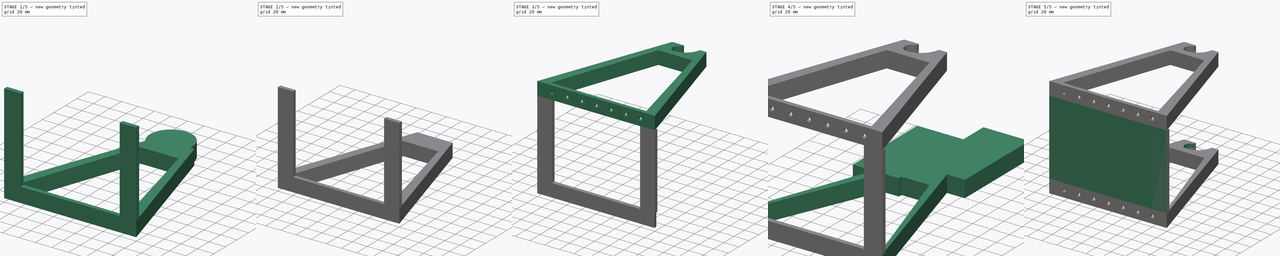
[diagram: build sequence overview — one tinted view per stage of 5, left to right]
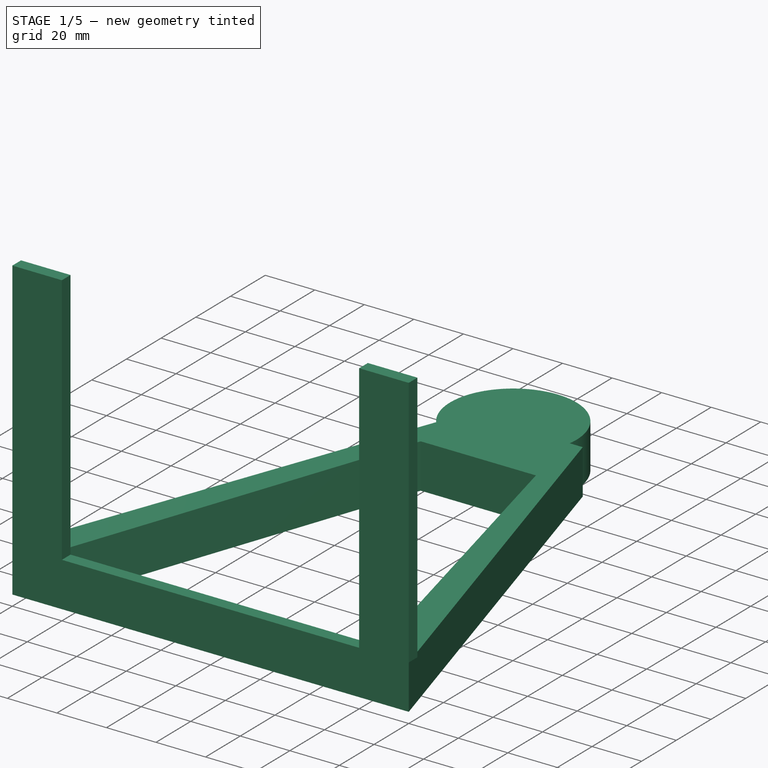
[diagram: stage 1 of 5 — iso view after this stage's code; geometry added in this stage tinted green]
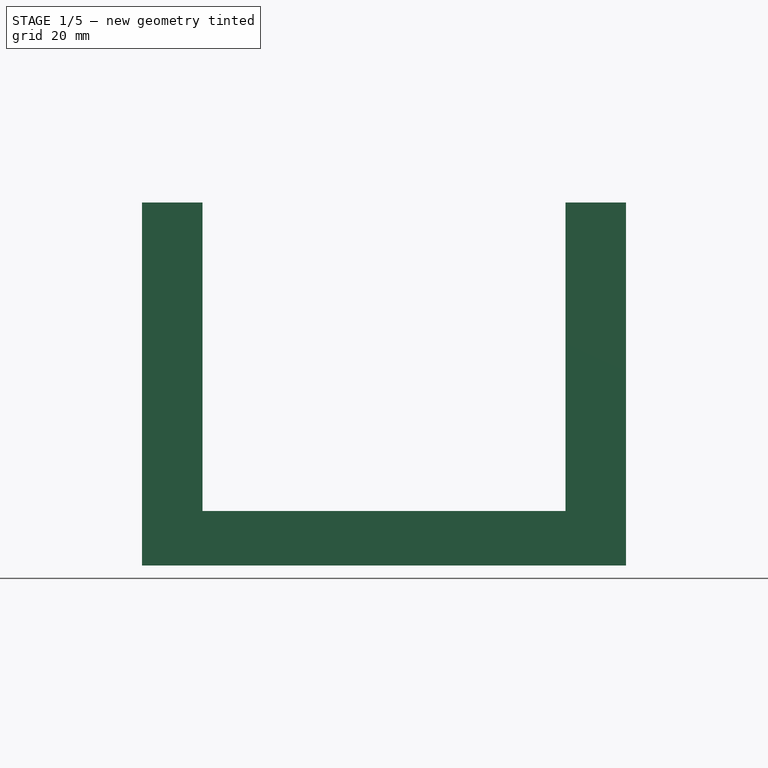
[diagram: stage 1 of 5 — front view after this stage's code; geometry added in this stage tinted green]
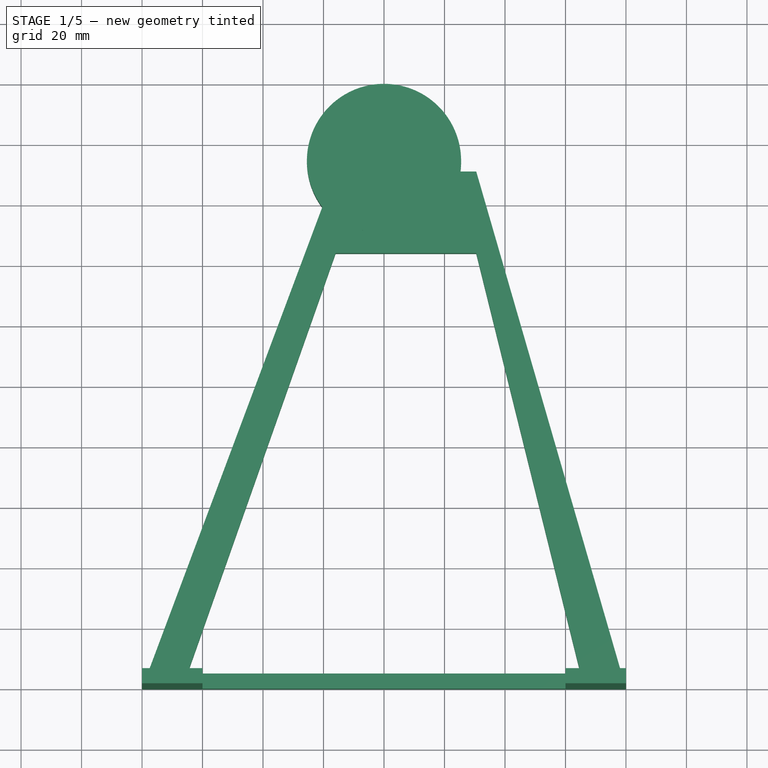
[diagram: stage 1 of 5 — top view after this stage's code; geometry added in this stage tinted green]
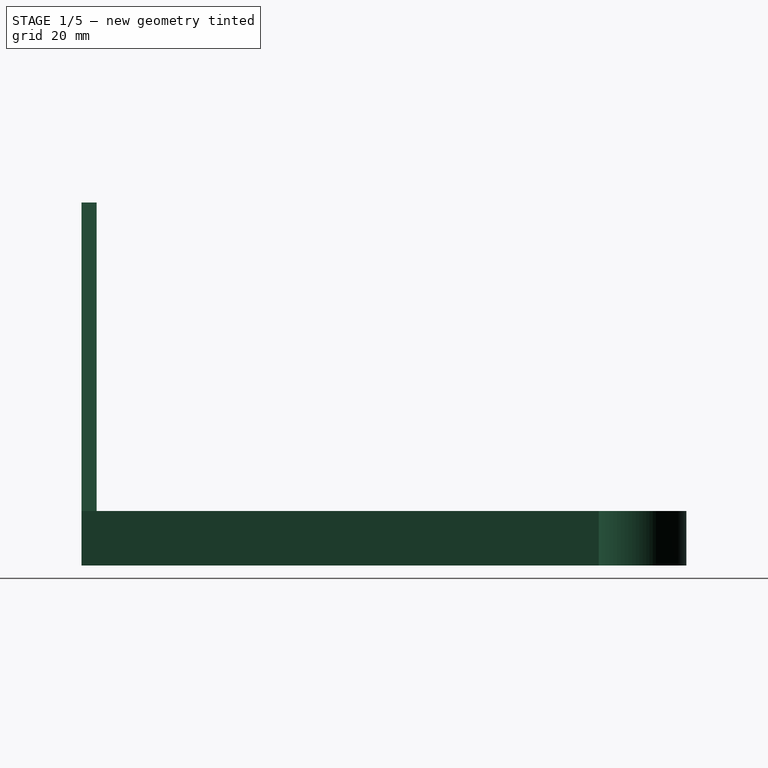
[diagram: stage 1 of 5 — right view after this stage's code; geometry added in this stage tinted green]
FCSTD DOCUMENT  (FreeCAD 1.0R1.0rc2)
Label: SimpleStand
License: All rights reserved
LicenseURL: http://en.wikipedia.org/wiki/All_rights_reserved
objects: Part::Cylinder×20, Part::Cut×20, Part::Box×15, Part::MultiFuse×12, Sketcher::SketchObject×6, PartDesign::Pad×6, PartDesign::Body×6, Part::MultiCommon×4, Part::FeaturePython×2, Spreadsheet::Sheet×1
note: 107 computed .brp shape members not serialized (recipe doc carries the construction recipe); baked Part::Feature solids carry a one-line shape summary decoded from their .brp

FEATURE [Part::Box] Box011  label="Cube011"
  AttacherType = Attacher::AttachEngine3D
  Height = 18
  Length = 46.5
  Placement = pos=(-16,-16,-5) rot=(0,0,1;0rad)
  Width = 27
FEATURE [Part::Box] Box012  label="Cube012"
  AttacherType = Attacher::AttachEngine3D
  Height = 18
  Length = 160
  Placement = pos=(-80,-160,-5) rot=(0,0,1;0rad)
  Width = 5
  expr: .Placement.Base.x = -<<Spreadsheet>>.stand_spread / 2
  expr: .Placement.Base.y = -<<Spreadsheet>>.stand_height
  expr: Length = <<Spreadsheet>>.stand_spread
FEATURE [Part::Cylinder] Cylinder016
  Angle = 360
  AttacherType = Attacher::AttachEngine3D
  FirstAngle = 0
  Height = 18
  Placement = pos=(0,0,-5) rot=(0,0,1;0rad)
  Radius = 11
  SecondAngle = 0
FEATURE [Part::Cylinder] Cylinder017
  Angle = 360
  AttacherType = Attacher::AttachEngine3D
  FirstAngle = 0
  Height = 18
  Placement = pos=(0,14.5,-5) rot=(0,0,1;0rad)
  Radius = 25.5
  SecondAngle = 0
FEATURE [Part::Cylinder] Cylinder018
  Angle = 360
  AttacherType = Attacher::AttachEngine3D
  FirstAngle = 0
  Height = 5
  Radius = 2.25
  SecondAngle = 0
FEATURE [Part::Cylinder] Cylinder019
  Angle = 360
  AttacherType = Attacher::AttachEngine3D
  FirstAngle = 0
  Height = 2
  Placement = pos=(0,0,3) rot=(0,0,1;0rad)
  Radius = 3.5
  SecondAngle = 0
FEATURE [Part::MultiFuse] Fusion009
  Placement = pos=(0,-160,3.75) rot=(1,0,0;-1.5708rad)
  Shapes = -> [Cylinder018,Cylinder019]
  expr: .Placement.Base.y = -<<Spreadsheet>>.stand_height
FEATURE [Sketcher::SketchObject] Sketch003
  ArcFitTolerance = 1e-06
  AttachmentSupport = -> [XY_Plane003]
  FullyConstrained = true
  MakeInternals = false
  MapMode = 5
  expr: Constraints[11] = <<Spreadsheet>>.stand_spread / 2
  expr: Constraints[7] = <<Spreadsheet>>.stand_spread
  expr: Constraints[8] = <<Spreadsheet>>.stand_height + 11
  sketch-geometry (4):
    g0: LineSegment StartX=-80 StartY=-160 StartZ=0 EndX=-16 EndY=11 EndZ=0
    g1: LineSegment StartX=-16 StartY=11 StartZ=0 EndX=30.5 EndY=11 EndZ=0
    g2: LineSegment StartX=30.5 StartY=11 StartZ=0 EndX=80 EndY=-160 EndZ=0
    g3: LineSegment StartX=80 StartY=-160 StartZ=0 EndX=-80 EndY=-160 EndZ=0
  constraints (12):
    c: Coincident(g0,g1)
    c: Horizontal(g1)
    c: Coincident(g1,g2)
    c: Coincident(g2,g3)
    c: Coincident(g3,g0)
    c: Horizontal(g3)
    c: DistanceX(g1,g1) = 46.5
    c: DistanceX(g3,g3) = 160
    c: DistanceY(g2,g1) = 171
    c: DistanceY(g-1,g1) = 11
    c: DistanceX(g0,g-1) = 16
    c: DistanceX(g0,g-1) = 80
FEATURE [PartDesign::Pad] Pad003
  Direction = (0,0,1)
  Length = 18
  Length2 = 10
  Profile = -> Sketch003
  ReferenceAxis = -> Sketch003 [N_Axis]
  Suppressed = false
  Type = 0
FEATURE [PartDesign::Body] Body003
  AllowCompound = false
  Group = -> [Sketch003,Pad003]
  Origin = -> Origin003
  Placement = pos=(0,0,-5) rot=(0,0,1;0rad)
  Tip = -> Pad003
FEATURE [Sketcher::SketchObject] Sketch004
  ArcFitTolerance = 1e-06
  AttachmentSupport = -> [XY_Plane004]
  FullyConstrained = true
  MakeInternals = false
  MapMode = 5
  expr: Constraints[10] = (<<Spreadsheet>>.stand_spread - 30) / 2
  expr: Constraints[7] = <<Spreadsheet>>.stand_spread - 30
  expr: Constraints[8] = <<Spreadsheet>>.stand_height - 11 - 5 - 5
  sketch-geometry (4):
    g0: LineSegment StartX=-65 StartY=-155 StartZ=0 EndX=-16 EndY=-16 EndZ=0
    g1: LineSegment StartX=-16 StartY=-16 StartZ=0 EndX=30.5 EndY=-16 EndZ=0
    g2: LineSegment StartX=30.5 StartY=-16 StartZ=0 EndX=65 EndY=-155 EndZ=0
    g3: LineSegment StartX=65 StartY=-155 StartZ=0 EndX=-65 EndY=-155 EndZ=0
  constraints (12):
    c: Coincident(g0,g1)
    c: Horizontal(g1)
    c: Coincident(g1,g2)
    c: Coincident(g2,g3)
    c: Coincident(g3,g0)
    c: Horizontal(g3)
    c: DistanceX(g1,g1) = 46.5
    c: DistanceX(g3,g3) = 130
    c: DistanceY(g2,g1) = 139
    c: DistanceX(g0,g-1) = 16
    c: DistanceX(g0,g-1) = 65
    c: DistanceY(g1,g-1) = 16
FEATURE [PartDesign::Pad] Pad004
  Direction = (0,0,1)
  Length = 18
  Length2 = 10
  Profile = -> Sketch004
  ReferenceAxis = -> Sketch004 [N_Axis]
  Suppressed = false
  Type = 0
FEATURE [PartDesign::Body] Body004
  AllowCompound = false
  Group = -> [Sketch004,Pad004]
  Origin = -> Origin004
  Placement = pos=(0,0,-5) rot=(0,0,1;0rad)
  Tip = -> Pad004
FEATURE [Part::Cut] Cut017
  Base = -> Body003
  Tool = -> Body004
FEATURE [Sketcher::SketchObject] Sketch005
  ArcFitTolerance = 1e-06
  AttachmentSupport = -> [XY_Plane005]
  FullyConstrained = true
  MakeInternals = false
  MapMode = 5
  expr: Constraints[11] = <<Spreadsheet>>.stand_spread / 2
  expr: Constraints[7] = <<Spreadsheet>>.stand_spread
  expr: Constraints[8] = <<Spreadsheet>>.stand_height + 11
  sketch-geometry (4):
    g0: LineSegment StartX=-80 StartY=-160 StartZ=0 EndX=-16 EndY=11 EndZ=0
    g1: LineSegment StartX=-16 StartY=11 StartZ=0 EndX=30.5 EndY=11 EndZ=0
    g2: LineSegment StartX=30.5 StartY=11 StartZ=0 EndX=80 EndY=-160 EndZ=0
    g3: LineSegment StartX=80 StartY=-160 StartZ=0 EndX=-80 EndY=-160 EndZ=0
  constraints (12):
    c: Coincident(g0,g1)
    c: Horizontal(g1)
    c: Coincident(g1,g2)
    c: Coincident(g2,g3)
    c: Coincident(g3,g0)
    c: Horizontal(g3)
    c: DistanceX(g1,g1) = 46.5
    c: DistanceX(g3,g3) = 160
    c: DistanceY(g2,g1) = 171
    c: DistanceY(g-1,g1) = 11
    c: DistanceX(g0,g-1) = 16
    c: DistanceX(g0,g-1) = 80
FEATURE [PartDesign::Pad] Pad005
  Direction = (0,0,1)
  Length = 18
  Length2 = 10
  Profile = -> Sketch005
  ReferenceAxis = -> Sketch005 [N_Axis]
  Suppressed = false
  Type = 0
FEATURE [PartDesign::Body] Body005
  AllowCompound = false
  Group = -> [Sketch005,Pad005]
  Origin = -> Origin005
  Placement = pos=(0,0,-5) rot=(0,0,1;0rad)
  Tip = -> Pad005
FEATURE [Part::MultiCommon] Common003
  Shapes = -> [Box012,Body005]
FEATURE [Part::MultiFuse] Fusion007
  Shapes = -> [Cut017,Common003,Box011]
FEATURE [Part::Box] Box013  label="Cube013"
  AttacherType = Attacher::AttachEngine3D
  Height = 102
  Length = 20
  Placement = pos=(-80,-160,13) rot=(0,0,1;0rad)
  Width = 5
  expr: .Placement.Base.y = -<<Spreadsheet>>.stand_height
  expr: Height = 138 - 2 * 18
FEATURE [Part::Box] Box017  label="Cube017"
  AttacherType = Attacher::AttachEngine3D
  Height = 102
  Length = 20
  Placement = pos=(60,-160,13) rot=(0,0,1;0rad)
  Width = 5
  expr: .Placement.Base.y = -<<Spreadsheet>>.stand_height
  expr: Height = 138 - 2 * 18
  expr: Length = 20
FEATURE [Part::MultiFuse] Fusion010
  Shapes = -> [Box017,Box013]
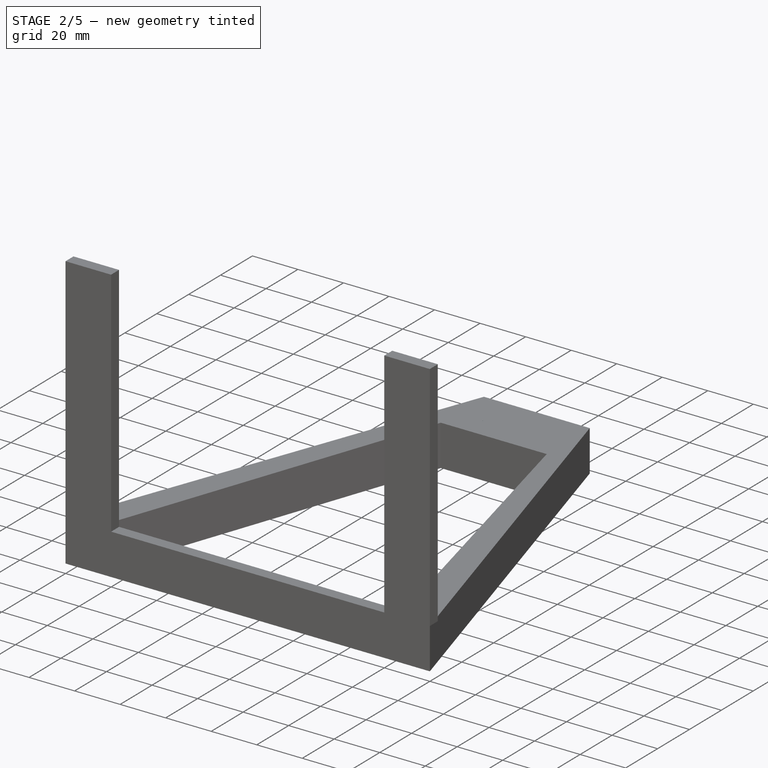
[diagram: stage 2 of 5 — iso view after this stage's code; geometry added in this stage tinted green]
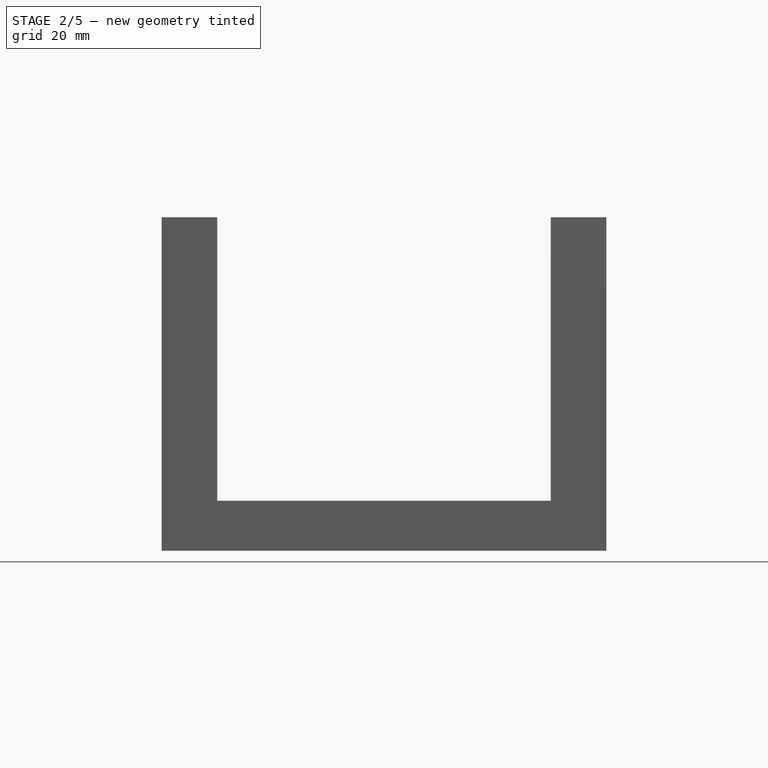
[diagram: stage 2 of 5 — front view after this stage's code; geometry added in this stage tinted green]
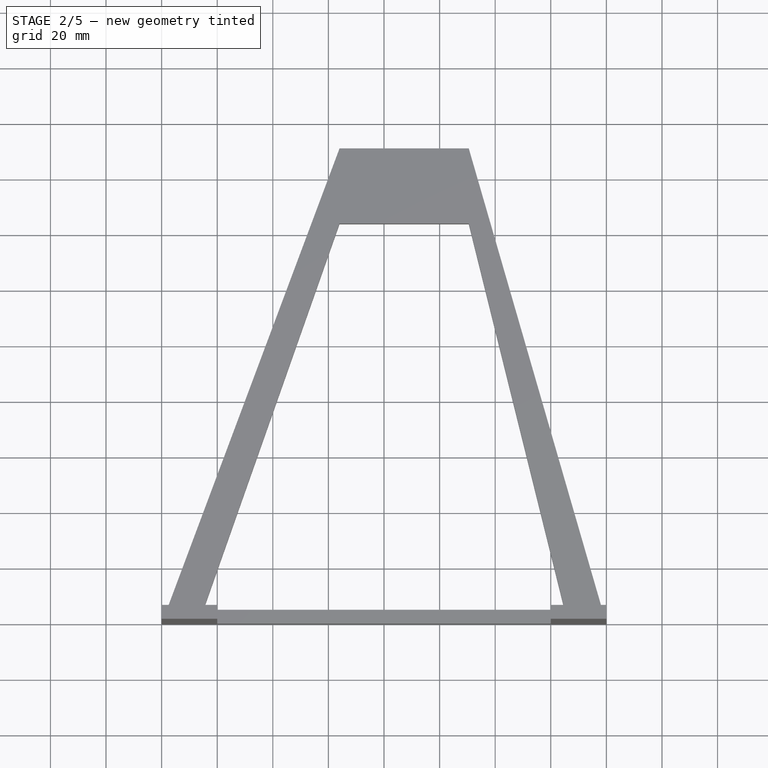
[diagram: stage 2 of 5 — top view after this stage's code; geometry added in this stage tinted green]
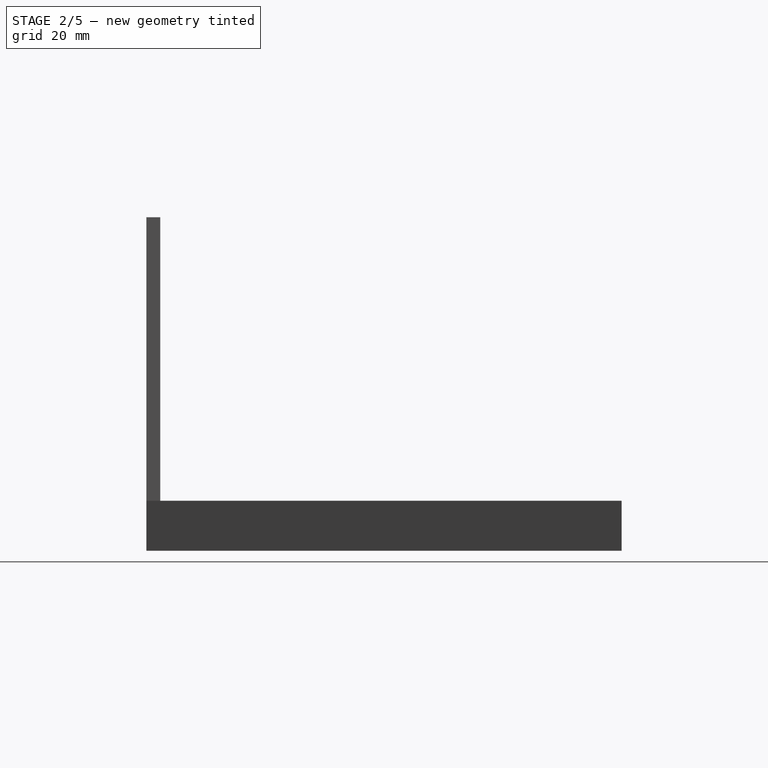
[diagram: stage 2 of 5 — right view after this stage's code; geometry added in this stage tinted green]
FEATURE [Part::Box] Box007  label="Cube007"
  AttacherType = Attacher::AttachEngine3D
  Height = 18
  Length = 22
  Placement = pos=(0,-11,-5) rot=(0,0,1;0rad)
  Width = 22
FEATURE [Part::Box] Box008  label="Cube008"
  AttacherType = Attacher::AttachEngine3D
  Height = 18
  Length = 50
  Placement = pos=(-50,-20,-5) rot=(0,0,1;0rad)
  Width = 100
FEATURE [Part::Box] Box009  label="Cube009"
  AttacherType = Attacher::AttachEngine3D
  Height = 18
  Length = 50
  Placement = pos=(0,11,-5) rot=(0,0,1;0rad)
  Width = 100
FEATURE [Part::Box] Box010  label="Cube010"
  AttacherType = Attacher::AttachEngine3D
  Height = 18
  Length = 500
  Placement = pos=(0,-489,-5) rot=(0,0,1;0rad)
  Width = 500
FEATURE [Part::Cylinder] Cylinder010
  Angle = 360
  AttacherType = Attacher::AttachEngine3D
  FirstAngle = 0
  Height = 8
  Radius = 11
  SecondAngle = 0
FEATURE [Part::Cylinder] Cylinder011
  Angle = 360
  AttacherType = Attacher::AttachEngine3D
  FirstAngle = 0
  Height = 18
  Placement = pos=(0,0,-5) rot=(0,0,1;0rad)
  Radius = 7.5
  SecondAngle = 0
FEATURE [Part::Cylinder] Cylinder012
  Angle = 360
  AttacherType = Attacher::AttachEngine3D
  FirstAngle = 0
  Height = 18
  Placement = pos=(0,0,-5) rot=(0,0,1;0rad)
  Radius = 11
  SecondAngle = 0
FEATURE [Part::Cylinder] Cylinder013
  Angle = 360
  AttacherType = Attacher::AttachEngine3D
  FirstAngle = 0
  Height = 18
  Placement = pos=(0,14.5,-5) rot=(0,0,1;0rad)
  Radius = 25.5
  SecondAngle = 0
FEATURE [Part::Cylinder] Cylinder014
  Angle = 360
  AttacherType = Attacher::AttachEngine3D
  FirstAngle = 0
  Height = 18
  Placement = pos=(0,14.5,-5) rot=(0,0,1;0rad)
  Radius = 22
  SecondAngle = 0
FEATURE [Part::Cut] Cut013
  Base = -> Cylinder013
  Tool = -> Cylinder014
FEATURE [Part::Cylinder] Cylinder015
  Angle = 360
  AttacherType = Attacher::AttachEngine3D
  FirstAngle = 0
  Height = 8
  Placement = pos=(0,14.5,0) rot=(0,0,1;0rad)
  Radius = 25.5
  SecondAngle = 0
FEATURE [Part::Cut] Cut014
  Base = -> Cut013
  Tool = -> Cylinder015
FEATURE [Part::Cut] Cut015
  Base = -> Cut014
  Tool = -> Box008
FEATURE [Part::Cut] Cut016
  Base = -> Cut015
  Tool = -> Box009
FEATURE [Part::MultiCommon] Common002
  Shapes = -> [Cylinder017,Box010]
FEATURE [Part::MultiFuse] Fusion006  label="MountSpace001"
  Shapes = -> [Cylinder016,Common002]
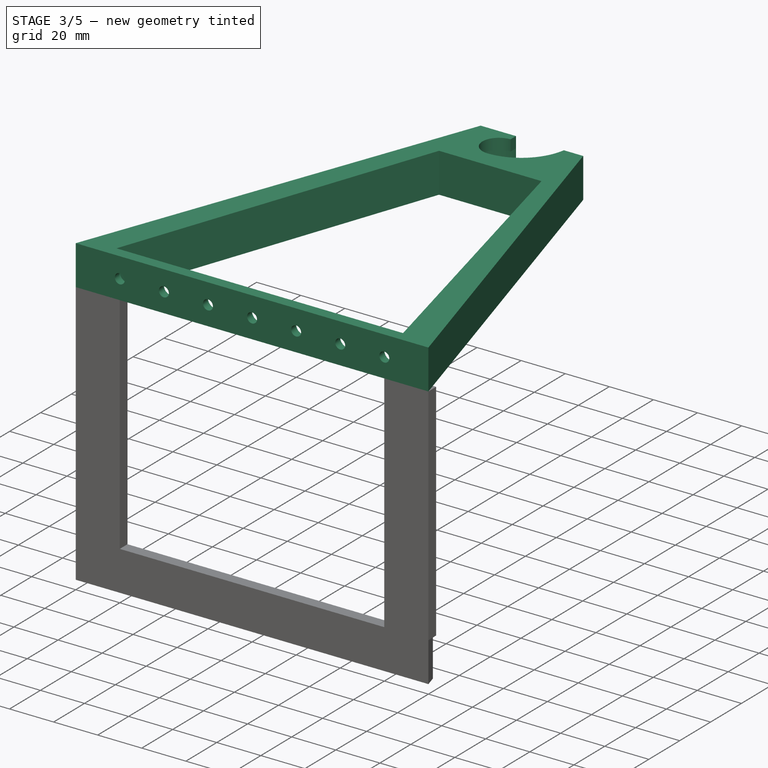
[diagram: stage 3 of 5 — iso view after this stage's code; geometry added in this stage tinted green]
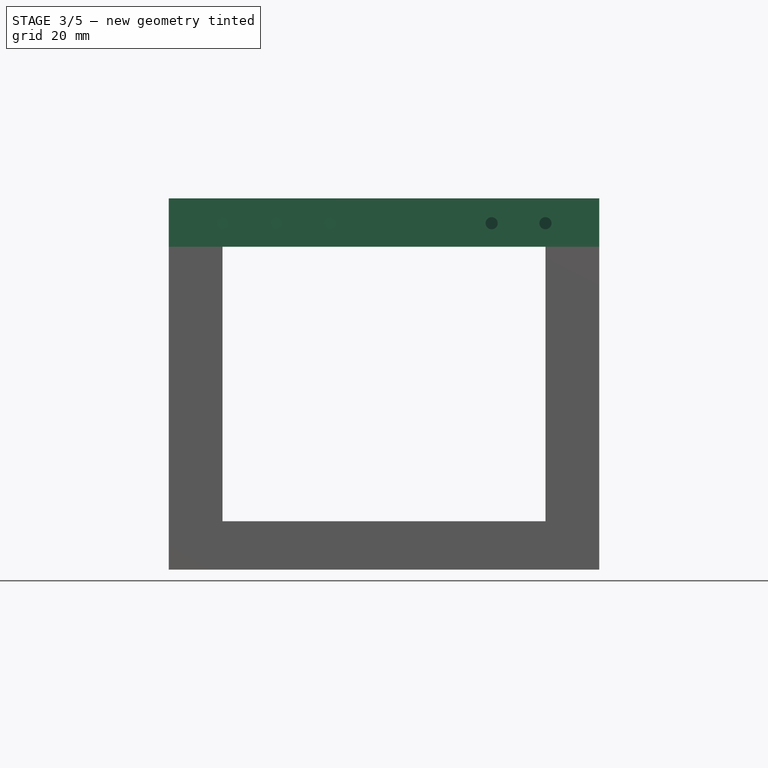
[diagram: stage 3 of 5 — front view after this stage's code; geometry added in this stage tinted green]
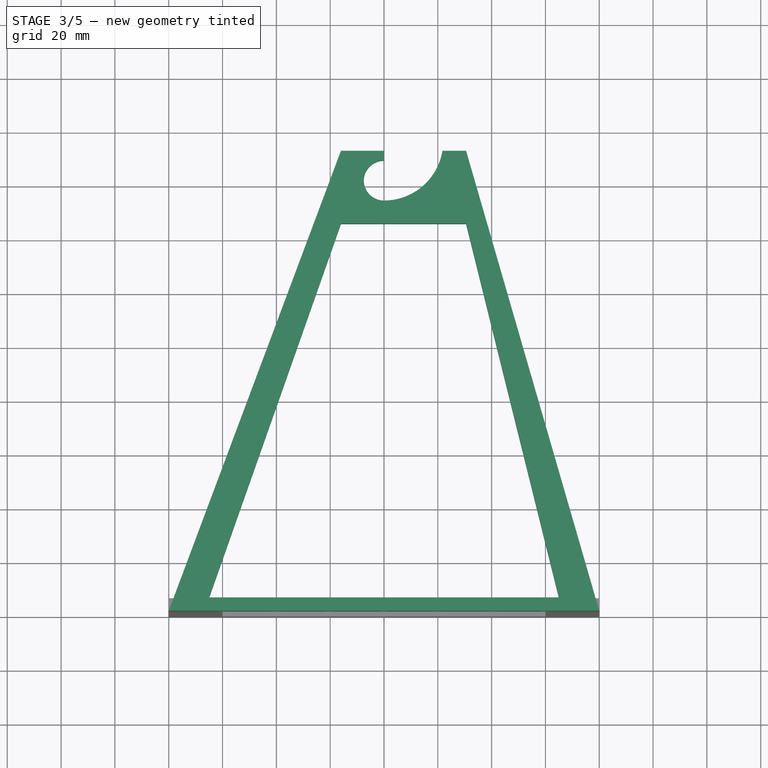
[diagram: stage 3 of 5 — top view after this stage's code; geometry added in this stage tinted green]
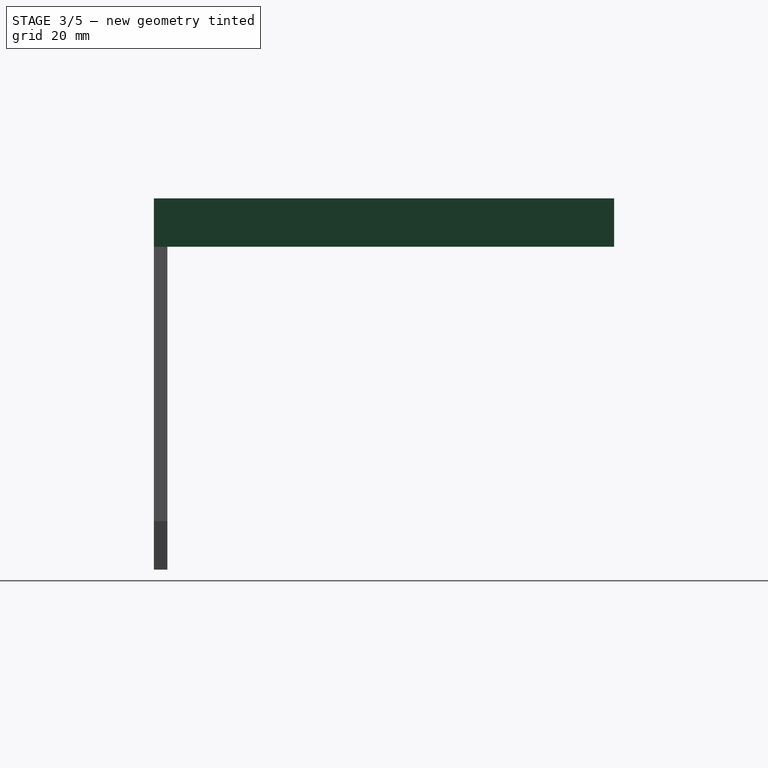
[diagram: stage 3 of 5 — right view after this stage's code; geometry added in this stage tinted green]
FEATURE [Part::Box] Box006  label="Cube006"
  AttacherType = Attacher::AttachEngine3D
  Height = 18
  Length = 160
  Placement = pos=(-80,-160,-5) rot=(0,0,1;0rad)
  Width = 5
  expr: .Placement.Base.x = -<<Spreadsheet>>.stand_spread / 2
  expr: .Placement.Base.y = -<<Spreadsheet>>.stand_height
  expr: Length = <<Spreadsheet>>.stand_spread
FEATURE [Sketcher::SketchObject] Sketch002
  ArcFitTolerance = 1e-06
  AttachmentSupport = -> [XY_Plane002]
  FullyConstrained = true
  MakeInternals = false
  MapMode = 5
  expr: Constraints[11] = <<Spreadsheet>>.stand_spread / 2
  expr: Constraints[7] = <<Spreadsheet>>.stand_spread
  expr: Constraints[8] = <<Spreadsheet>>.stand_height + 11
  sketch-geometry (4):
    g0: LineSegment StartX=-80 StartY=-160 StartZ=0 EndX=-16 EndY=11 EndZ=0
    g1: LineSegment StartX=-16 StartY=11 StartZ=0 EndX=30.5 EndY=11 EndZ=0
    g2: LineSegment StartX=30.5 StartY=11 StartZ=0 EndX=80 EndY=-160 EndZ=0
    g3: LineSegment StartX=80 StartY=-160 StartZ=0 EndX=-80 EndY=-160 EndZ=0
  constraints (12):
    c: Coincident(g0,g1)
    c: Horizontal(g1)
    c: Coincident(g1,g2)
    c: Coincident(g2,g3)
    c: Coincident(g3,g0)
    c: Horizontal(g3)
    c: DistanceX(g1,g1) = 46.5
    c: DistanceX(g3,g3) = 160
    c: DistanceY(g2,g1) = 171
    c: DistanceY(g-1,g1) = 11
    c: DistanceX(g0,g-1) = 16
    c: DistanceX(g0,g-1) = 80
FEATURE [PartDesign::Pad] Pad002
  Direction = (0,0,1)
  Length = 18
  Length2 = 10
  Profile = -> Sketch002
  ReferenceAxis = -> Sketch002 [N_Axis]
  Suppressed = false
  Type = 0
FEATURE [PartDesign::Body] Body002
  AllowCompound = false
  Group = -> [Sketch002,Pad002]
  Origin = -> Origin002
  Placement = pos=(0,0,-5) rot=(0,0,1;0rad)
  Tip = -> Pad002
FEATURE [Part::MultiCommon] Common001
  Shapes = -> [Box006,Body002]
FEATURE [Part::Cylinder] Cylinder008
  Angle = 360
  AttacherType = Attacher::AttachEngine3D
  FirstAngle = 0
  Height = 5
  Radius = 2.25
  SecondAngle = 0
FEATURE [Part::Cylinder] Cylinder009
  Angle = 360
  AttacherType = Attacher::AttachEngine3D
  FirstAngle = 0
  Height = 2
  Placement = pos=(0,0,3) rot=(0,0,1;0rad)
  Radius = 3.5
  SecondAngle = 0
FEATURE [Part::MultiFuse] Fusion004
  Placement = pos=(0,-160,3.75) rot=(1,0,0;-1.5708rad)
  Shapes = -> [Cylinder008,Cylinder009]
  expr: .Placement.Base.y = -<<Spreadsheet>>.stand_height
FEATURE [Part::FeaturePython] Array  # Draft array (typed FeaturePython)
  AlwaysSyncPlacement = false
  Angle = 360
  ArrayType = 0
  Axis = (0,0,1)
  Base = -> Fusion004
  Center = (0,0,0)
  Count = 7
  ExpandArray = false
  Fuse = false
  IntervalAxis = (0,0,0)
  IntervalX = (20,0,0)
  IntervalY = (0,100,0)
  IntervalZ = (0,0,100)
  NumberCircles = 3
  NumberPolar = 5
  NumberX = 7
  NumberY = 1
  NumberZ = 1
  Placement = pos=(-60,0,0) rot=(0,0,1;0rad)
  PlacementList = 7 placements: arithmetic series from (0,-160,3.75) step (20,0,0) to (120,-160,3.75)
  RadialDistance = 50
  ScaleList = (7) [(1,1,1),(1,1,1),(1,1,1),(1,1,1),(1,1,1),(1,1,1),(1,1,1)]
  Symmetry = 1
  TangentialDistance = 25
FEATURE [Part::Cut] Cut010
  Base = -> Cylinder012
  Tool = -> Box007
FEATURE [Part::Cut] Cut011
  Base = -> Cut010
  Tool = -> Cylinder011
FEATURE [Part::Cut] Cut012
  Base = -> Cut011
  Tool = -> Cylinder010
FEATURE [Part::MultiFuse] Fusion005  label="BearingGuides001"
  Shapes = -> [Cut016,Cut012]
FEATURE [Part::FeaturePython] Array001  # Draft array (typed FeaturePython)
  AlwaysSyncPlacement = false
  Angle = 360
  ArrayType = 0
  Axis = (0,0,1)
  Base = -> Fusion009
  Center = (0,0,0)
  Count = 7
  ExpandArray = false
  Fuse = false
  IntervalAxis = (0,0,0)
  IntervalX = (20,0,0)
  IntervalY = (0,100,0)
  IntervalZ = (0,0,100)
  NumberCircles = 3
  NumberPolar = 5
  NumberX = 7
  NumberY = 1
  NumberZ = 1
  Placement = pos=(-60,0,0) rot=(0,0,1;0rad)
  PlacementList = 7 placements: arithmetic series from (0,-160,3.75) step (20,0,0) to (120,-160,3.75)
  RadialDistance = 50
  ScaleList = (7) [(1,1,1),(1,1,1),(1,1,1),(1,1,1),(1,1,1),(1,1,1),(1,1,1)]
  Symmetry = 1
  TangentialDistance = 25
FEATURE [Part::Cut] Cut018
  Base = -> Fusion007
  Tool = -> Fusion006
FEATURE [Part::MultiFuse] Fusion008
  Shapes = -> [Fusion005,Cut018]
FEATURE [Part::Cut] Cut019
  Base = -> Fusion008
  Placement = pos=(0,0,120) rot=(0,0,1;0rad)
  Tool = -> Array001
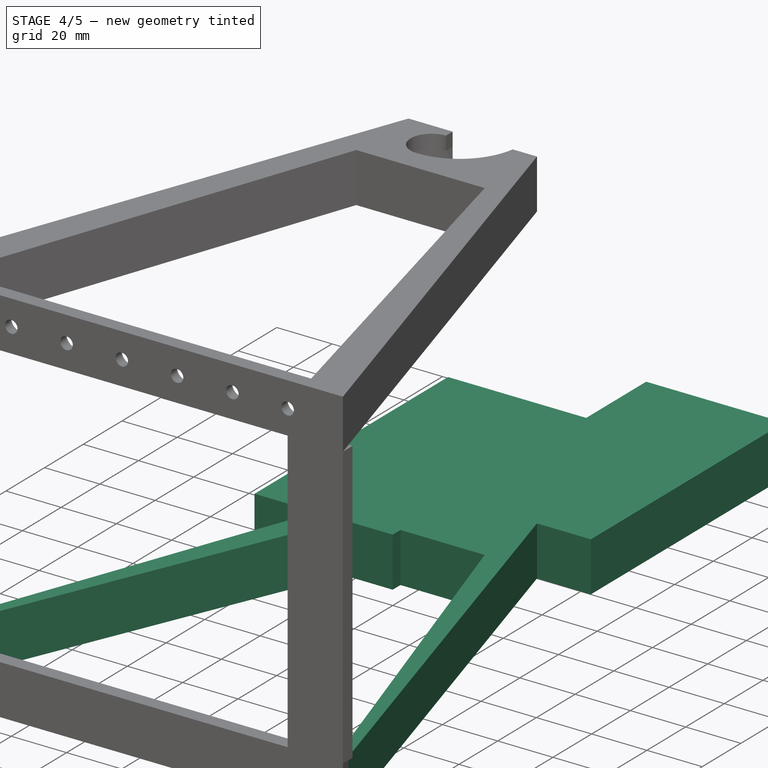
[diagram: stage 4 of 5 — iso view after this stage's code; geometry added in this stage tinted green]
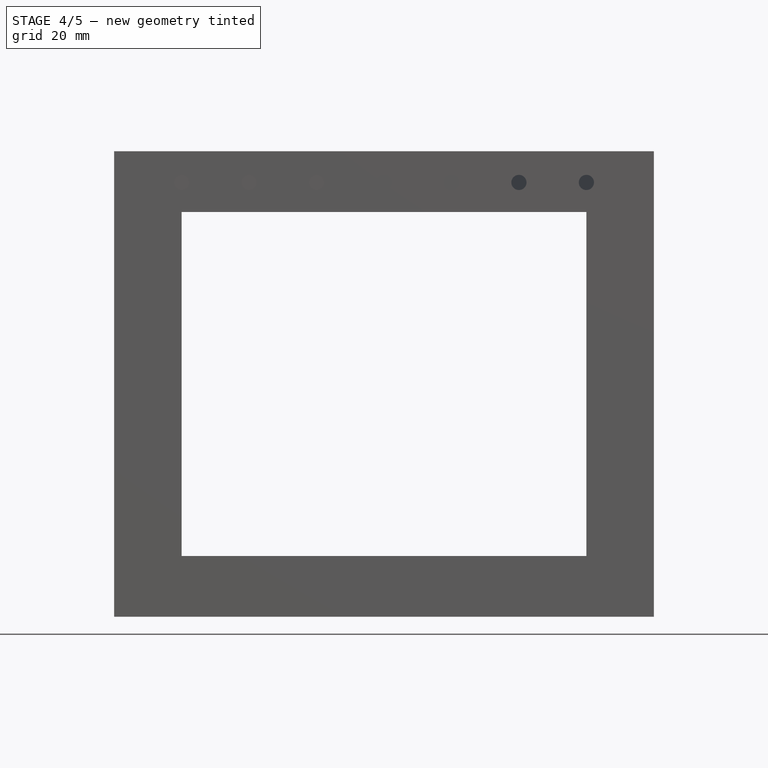
[diagram: stage 4 of 5 — front view after this stage's code; geometry added in this stage tinted green]
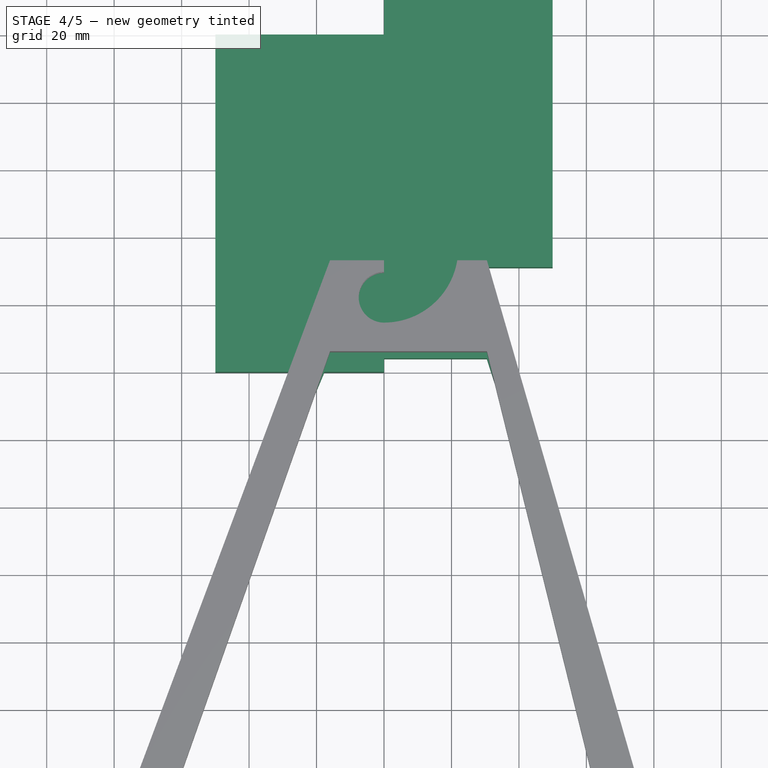
[diagram: stage 4 of 5 — top view after this stage's code; geometry added in this stage tinted green]
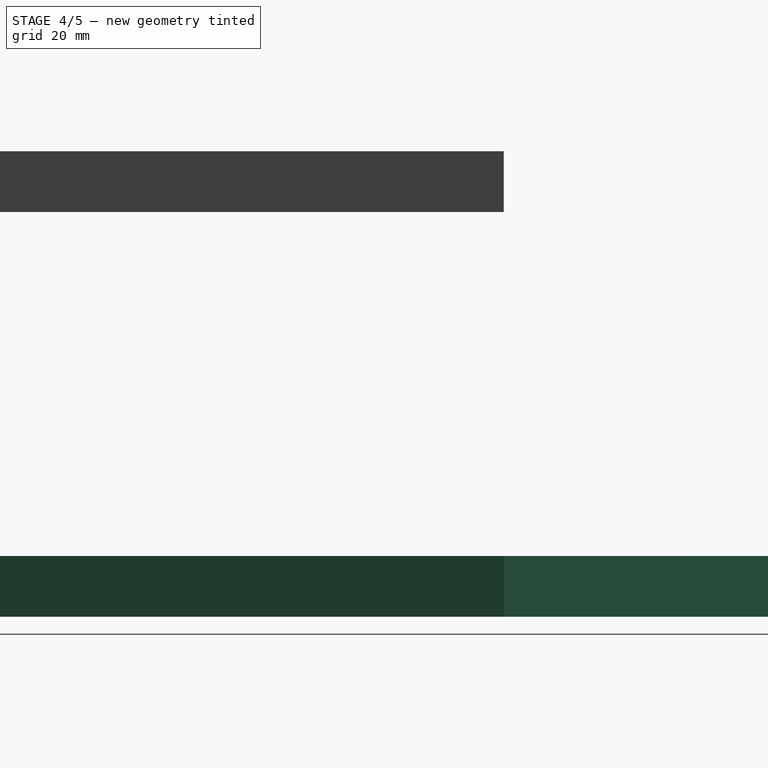
[diagram: stage 4 of 5 — right view after this stage's code; geometry added in this stage tinted green]
FEATURE [Part::Cylinder] Cylinder003
  Angle = 360
  AttacherType = Attacher::AttachEngine3D
  FirstAngle = 0
  Height = 18
  Placement = pos=(0,14.5,-5) rot=(0,0,1;0rad)
  Radius = 25.5
  SecondAngle = 0
FEATURE [Part::Cylinder] Cylinder004
  Angle = 360
  AttacherType = Attacher::AttachEngine3D
  FirstAngle = 0
  Height = 18
  Placement = pos=(0,14.5,-5) rot=(0,0,1;0rad)
  Radius = 22
  SecondAngle = 0
FEATURE [Part::Cylinder] Cylinder005
  Angle = 360
  AttacherType = Attacher::AttachEngine3D
  FirstAngle = 0
  Height = 8
  Placement = pos=(0,14.5,0) rot=(0,0,1;0rad)
  Radius = 25.5
  SecondAngle = 0
FEATURE [Part::Box] Box001  label="Cube001"
  AttacherType = Attacher::AttachEngine3D
  Height = 18
  Length = 50
  Placement = pos=(-50,-20,-5) rot=(0,0,1;0rad)
  Width = 100
FEATURE [Part::Box] Box002  label="Cube002"
  AttacherType = Attacher::AttachEngine3D
  Height = 18
  Length = 50
  Placement = pos=(0,11,-5) rot=(0,0,1;0rad)
  Width = 100
FEATURE [Part::Cylinder] Cylinder006
  Angle = 360
  AttacherType = Attacher::AttachEngine3D
  FirstAngle = 0
  Height = 18
  Placement = pos=(0,0,-5) rot=(0,0,1;0rad)
  Radius = 11
  SecondAngle = 0
FEATURE [Part::Cylinder] Cylinder007
  Angle = 360
  AttacherType = Attacher::AttachEngine3D
  FirstAngle = 0
  Height = 18
  Placement = pos=(0,14.5,-5) rot=(0,0,1;0rad)
  Radius = 25.5
  SecondAngle = 0
FEATURE [Part::Box] Box004  label="Cube004"
  AttacherType = Attacher::AttachEngine3D
  Height = 18
  Length = 500
  Placement = pos=(0,-489,-5) rot=(0,0,1;0rad)
  Width = 500
FEATURE [Part::MultiCommon] Common
  Shapes = -> [Cylinder007,Box004]
FEATURE [Part::MultiFuse] Fusion001  label="MountSpace"
  Shapes = -> [Cylinder006,Common]
FEATURE [Part::Box] Box005  label="Cube005"
  AttacherType = Attacher::AttachEngine3D
  Height = 18
  Length = 46.5
  Placement = pos=(-16,-16,-5) rot=(0,0,1;0rad)
  Width = 27
FEATURE [Sketcher::SketchObject] Sketch
  ArcFitTolerance = 1e-06
  AttachmentSupport = -> [XY_Plane]
  FullyConstrained = true
  MakeInternals = false
  MapMode = 5
  expr: Constraints[11] = <<Spreadsheet>>.stand_spread / 2
  expr: Constraints[7] = <<Spreadsheet>>.stand_spread
  expr: Constraints[8] = <<Spreadsheet>>.stand_height + 11
  sketch-geometry (4):
    g0: LineSegment StartX=-80 StartY=-160 StartZ=0 EndX=-16 EndY=11 EndZ=0
    g1: LineSegment StartX=-16 StartY=11 StartZ=0 EndX=30.5 EndY=11 EndZ=0
    g2: LineSegment StartX=30.5 StartY=11 StartZ=0 EndX=80 EndY=-160 EndZ=0
    g3: LineSegment StartX=80 StartY=-160 StartZ=0 EndX=-80 EndY=-160 EndZ=0
  constraints (12):
    c: Coincident(g0,g1)
    c: Horizontal(g1)
    c: Coincident(g1,g2)
    c: Coincident(g2,g3)
    c: Coincident(g3,g0)
    c: Horizontal(g3)
    c: DistanceX(g1,g1) = 46.5
    c: DistanceX(g3,g3) = 160
    c: DistanceY(g2,g1) = 171
    c: DistanceY(g-1,g1) = 11
    c: DistanceX(g0,g-1) = 16
    c: DistanceX(g0,g-1) = 80
FEATURE [PartDesign::Pad] Pad
  Direction = (0,0,1)
  Length = 18
  Length2 = 10
  Profile = -> Sketch
  ReferenceAxis = -> Sketch [N_Axis]
  Suppressed = false
  Type = 0
FEATURE [PartDesign::Body] Body
  AllowCompound = false
  Group = -> [Sketch,Pad]
  Origin = -> Origin
  Placement = pos=(0,0,-5) rot=(0,0,1;0rad)
  Tip = -> Pad
FEATURE [Sketcher::SketchObject] Sketch001
  ArcFitTolerance = 1e-06
  AttachmentSupport = -> [XY_Plane001]
  FullyConstrained = true
  MakeInternals = false
  MapMode = 5
  expr: Constraints[10] = (<<Spreadsheet>>.stand_spread - 30) / 2
  expr: Constraints[7] = <<Spreadsheet>>.stand_spread - 30
  expr: Constraints[8] = <<Spreadsheet>>.stand_height - 11 - 5 - 5
  sketch-geometry (4):
    g0: LineSegment StartX=-65 StartY=-155 StartZ=0 EndX=-16 EndY=-16 EndZ=0
    g1: LineSegment StartX=-16 StartY=-16 StartZ=0 EndX=30.5 EndY=-16 EndZ=0
    g2: LineSegment StartX=30.5 StartY=-16 StartZ=0 EndX=65 EndY=-155 EndZ=0
    g3: LineSegment StartX=65 StartY=-155 StartZ=0 EndX=-65 EndY=-155 EndZ=0
  constraints (12):
    c: Coincident(g0,g1)
    c: Horizontal(g1)
    c: Coincident(g1,g2)
    c: Coincident(g2,g3)
    c: Coincident(g3,g0)
    c: Horizontal(g3)
    c: DistanceX(g1,g1) = 46.5
    c: DistanceX(g3,g3) = 130
    c: DistanceY(g2,g1) = 139
    c: DistanceX(g0,g-1) = 16
    c: DistanceX(g0,g-1) = 65
    c: DistanceY(g1,g-1) = 16
FEATURE [PartDesign::Pad] Pad001
  Direction = (0,0,1)
  Length = 18
  Length2 = 10
  Profile = -> Sketch001
  ReferenceAxis = -> Sketch001 [N_Axis]
  Suppressed = false
  Type = 0
FEATURE [PartDesign::Body] Body001
  AllowCompound = false
  Group = -> [Sketch001,Pad001]
  Origin = -> Origin001
  Placement = pos=(0,0,-5) rot=(0,0,1;0rad)
  Tip = -> Pad001
FEATURE [Part::Cut] Cut007
  Base = -> Body
  Tool = -> Body001
FEATURE [Part::MultiFuse] Fusion002
  Shapes = -> [Cut007,Common001,Box005]
FEATURE [Part::Cut] Cut008
  Base = -> Fusion002
  Tool = -> Fusion001
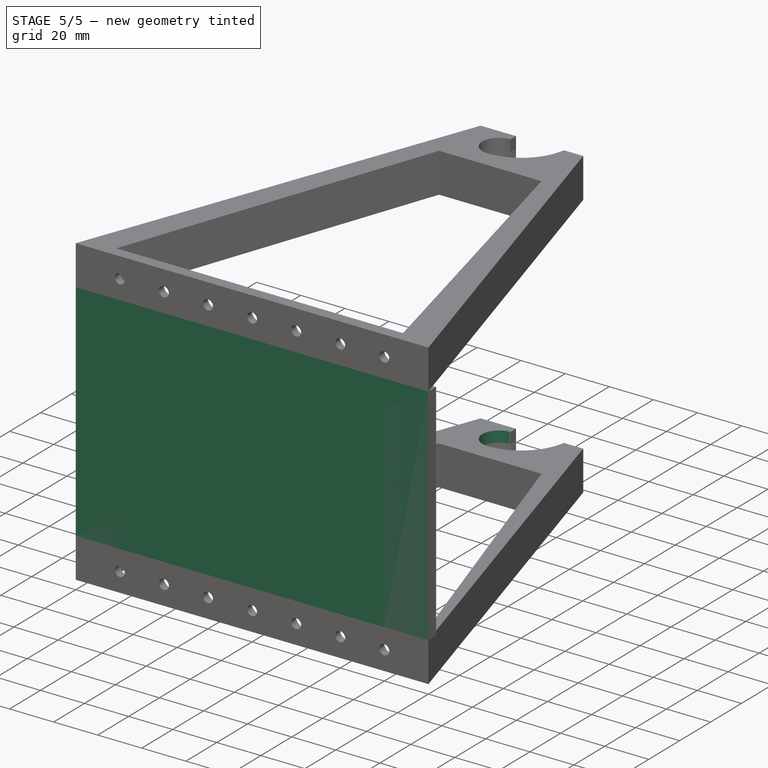
[diagram: stage 5 of 5 — iso view after this stage's code; geometry added in this stage tinted green]
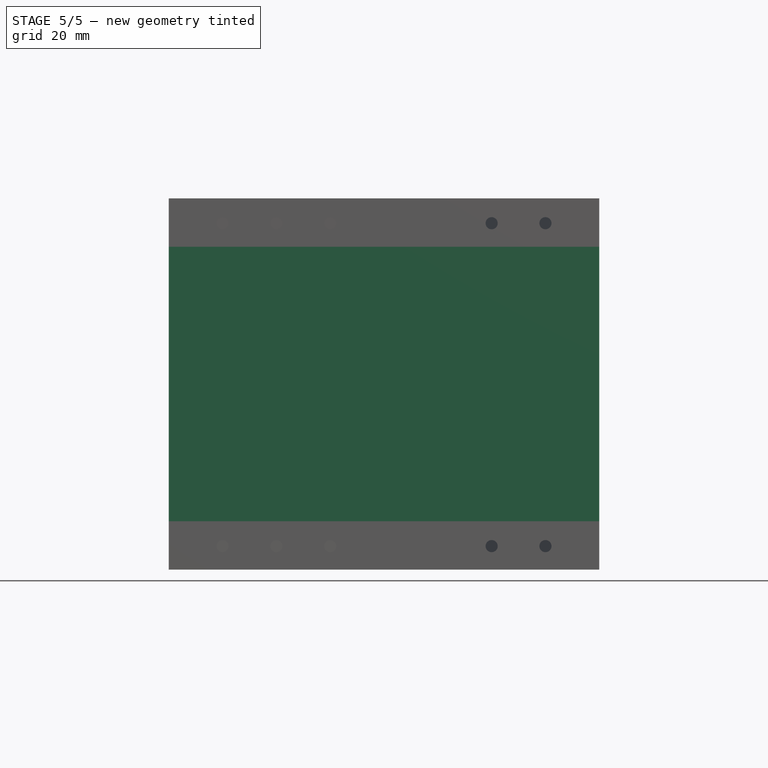
[diagram: stage 5 of 5 — front view after this stage's code; geometry added in this stage tinted green]
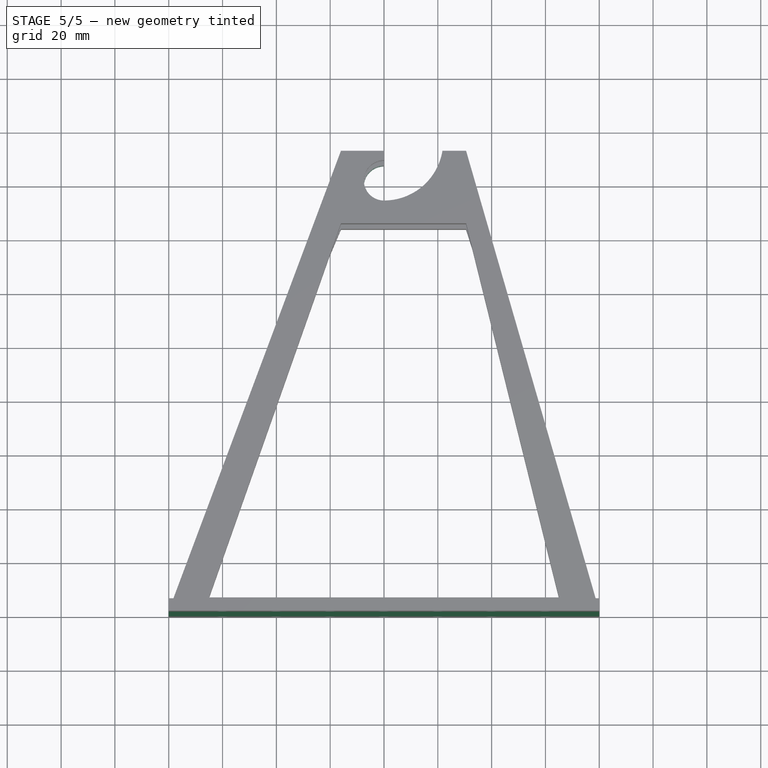
[diagram: stage 5 of 5 — top view after this stage's code; geometry added in this stage tinted green]
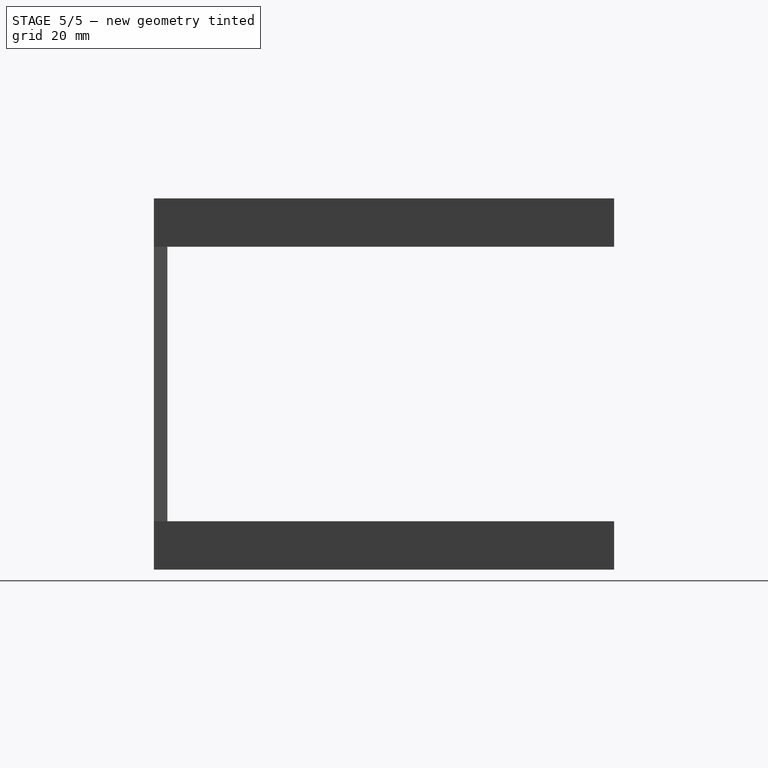
[diagram: stage 5 of 5 — right view after this stage's code; geometry added in this stage tinted green]
FEATURE [Spreadsheet::Sheet] Spreadsheet
  cells = A2='Height; B2(stand_height)=160; A3='Spread; B3(stand_spread)=160
FEATURE [Part::Cylinder] Cylinder
  Angle = 360
  AttacherType = Attacher::AttachEngine3D
  FirstAngle = 0
  Height = 8
  Radius = 11
  SecondAngle = 0
FEATURE [Part::Cylinder] Cylinder001
  Angle = 360
  AttacherType = Attacher::AttachEngine3D
  FirstAngle = 0
  Height = 18
  Placement = pos=(0,0,-5) rot=(0,0,1;0rad)
  Radius = 7.5
  SecondAngle = 0
FEATURE [Part::Cylinder] Cylinder002
  Angle = 360
  AttacherType = Attacher::AttachEngine3D
  FirstAngle = 0
  Height = 18
  Placement = pos=(0,0,-5) rot=(0,0,1;0rad)
  Radius = 11
  SecondAngle = 0
FEATURE [Part::Box] Box  label="Cube"
  AttacherType = Attacher::AttachEngine3D
  Height = 18
  Length = 22
  Placement = pos=(0,-11,-5) rot=(0,0,1;0rad)
  Width = 22
FEATURE [Part::Cut] Cut
  Base = -> Cylinder002
  Tool = -> Box
FEATURE [Part::Cut] Cut001
  Base = -> Cut
  Tool = -> Cylinder001
FEATURE [Part::Cut] Cut002
  Base = -> Cut001
  Tool = -> Cylinder
FEATURE [Part::Cut] Cut003
  Base = -> Cylinder003
  Tool = -> Cylinder004
FEATURE [Part::Cut] Cut004
  Base = -> Cut003
  Tool = -> Cylinder005
FEATURE [Part::Cut] Cut005
  Base = -> Cut004
  Tool = -> Box001
FEATURE [Part::Cut] Cut006
  Base = -> Cut005
  Tool = -> Box002
FEATURE [Part::MultiFuse] Fusion  label="BearingGuides"
  Shapes = -> [Cut006,Cut002]
FEATURE [Part::MultiFuse] Fusion003
  Shapes = -> [Fusion,Cut008]
FEATURE [Part::Cut] Cut009
  Base = -> Fusion003
  Tool = -> Array
FEATURE [Part::Box] Box014  label="Cube014"
  AttacherType = Attacher::AttachEngine3D
  Height = 102
  Length = 160
  Placement = pos=(-80,-160,13) rot=(0,0,1;0rad)
  Width = 5
  expr: .Placement.Base.x = -<<Spreadsheet>>.stand_spread / 2
  expr: .Placement.Base.y = -<<Spreadsheet>>.stand_height
  expr: Height = 138 - 2 * 18
  expr: Length = <<Spreadsheet>>.stand_spread
FEATURE [Part::MultiFuse] Fusion011  label="CombinedStand"
  Shapes = -> [Cut019,Cut009,Fusion010]
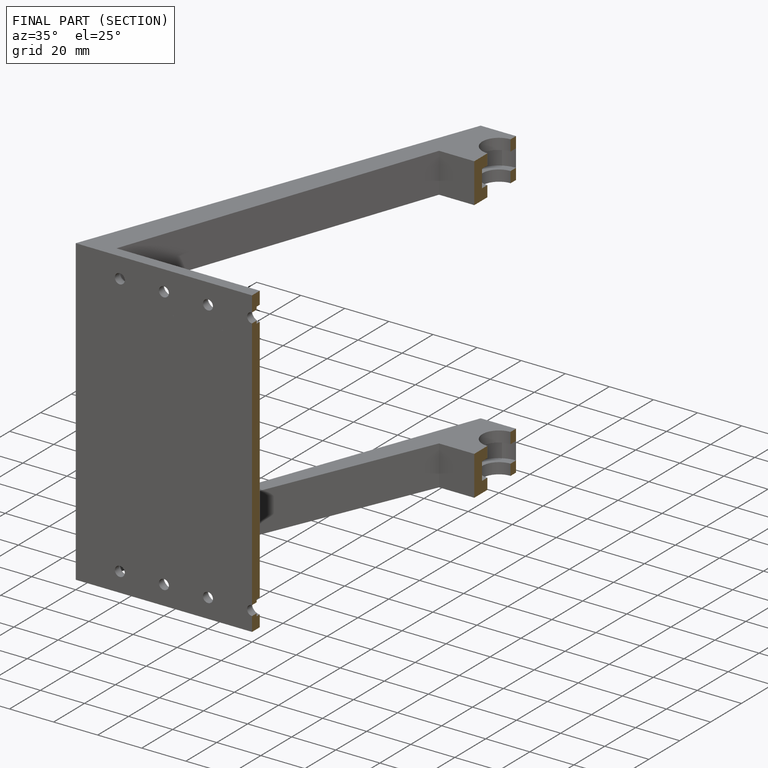
[diagram: finished part — half-section view (interior)]
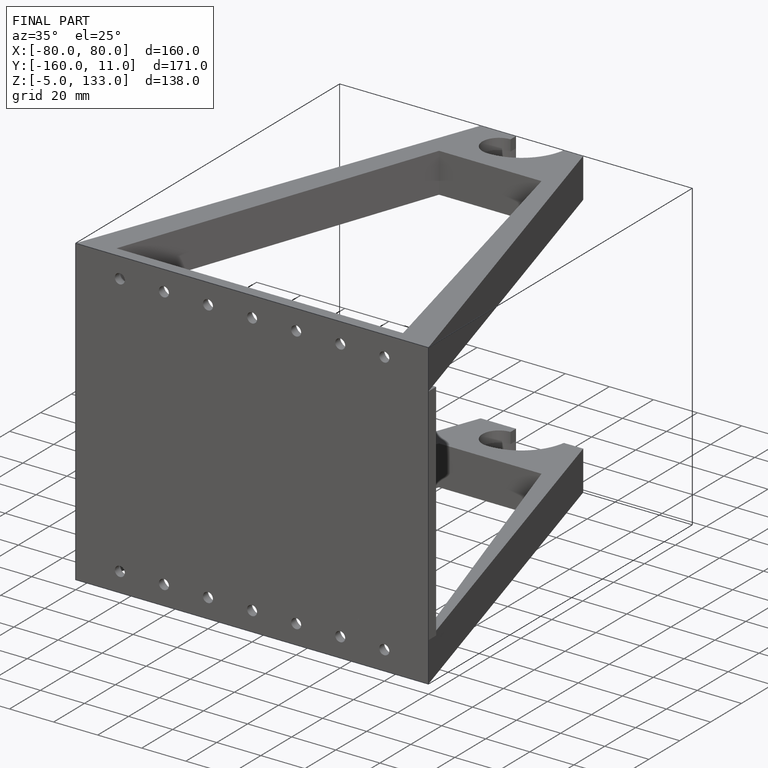
[diagram: finished part — iso view with bounding-box wireframe]
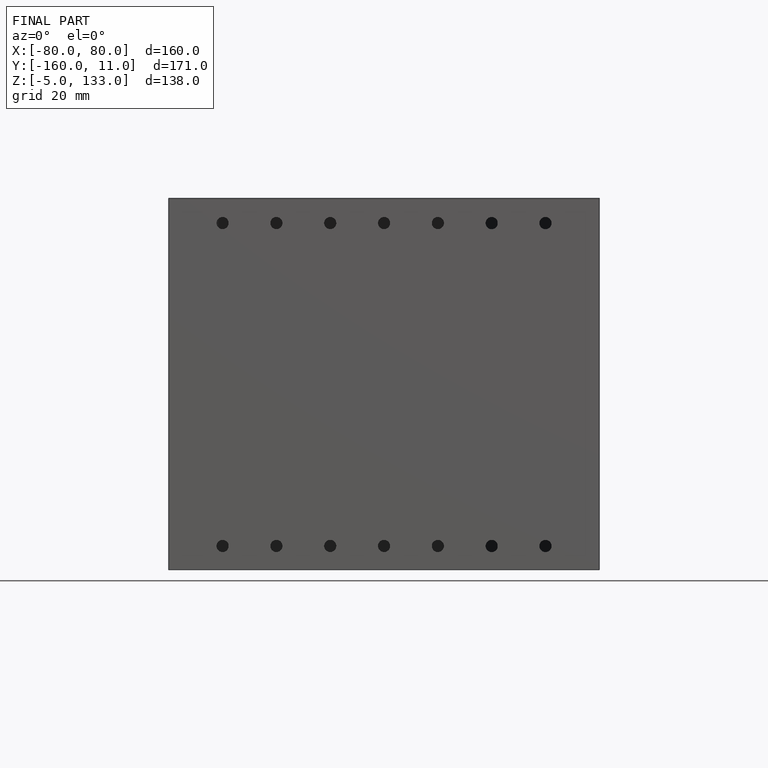
[diagram: finished part — front view with bounding-box wireframe]
